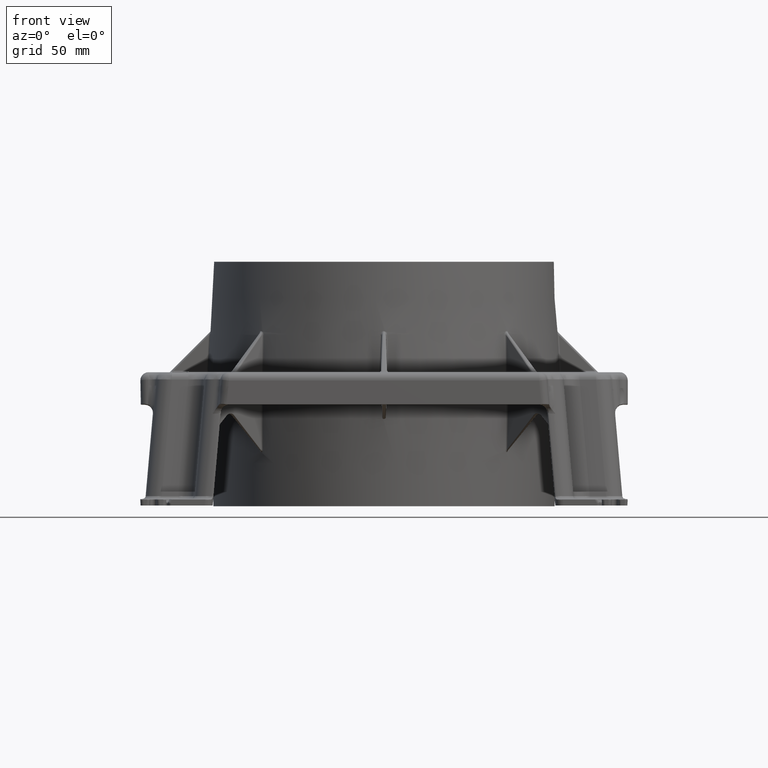
[diagram: clean part render]
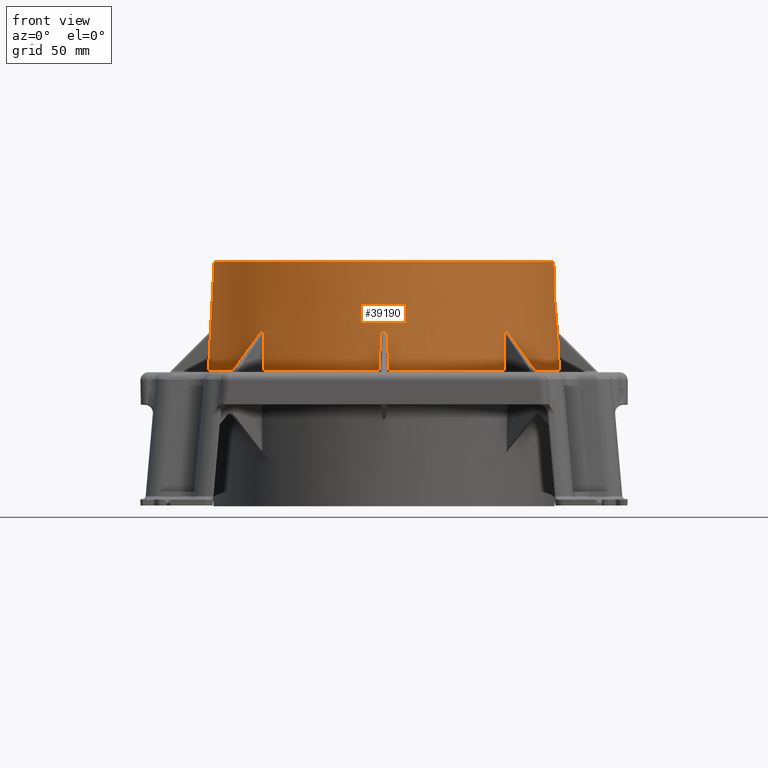
[diagram: same view with one face highlighted and labeled with its STEP entity id]
A machine part, front view. The second image highlights one B-rep face of the part: STEP entity #39190.
In plain terms, the highlighted conical surface has half-angle 3 deg.
Its self-contained STEP definition (entity closure, byte-faithful):
#38301=CARTESIAN_POINT('',(74.274895748569477,78.430593864823251,0.947664043757062));
#38302=VERTEX_POINT('',#38301);
#38342=CARTESIAN_POINT('',(74.016084416034587,77.117051930079484,22.496099015087296));
#38343=VERTEX_POINT('',#38342);
#38344=CARTESIAN_POINT('',(74.274895748569477,78.430593864823251,0.947664043757062));
#38345=CARTESIAN_POINT('',(74.189205882992468,77.993292485915347,8.130517009385679));
#38346=CARTESIAN_POINT('',(74.10294136183829,77.555450730793027,15.313329186647756));
#38347=CARTESIAN_POINT('',(74.016084416034587,77.117051930079484,22.49609901508731));
#38348=B_SPLINE_CURVE_WITH_KNOTS('',3,(#38344,#38345,#38346,#38347),.UNSPECIFIED.,.F.,.U.,(4,4),(-6.818513930174243,-4.659493144682952),.UNSPECIFIED.);
#38349=EDGE_CURVE('',#38302,#38343,#38348,.T.);
#38409=CARTESIAN_POINT('',(-78.43059386482328,-74.274895748569449,0.947664043757062));
#38410=VERTEX_POINT('',#38409);
#38429=CARTESIAN_POINT('',(-77.117051929851414,-74.016084415989368,22.496099018824541));
#38430=VERTEX_POINT('',#38429);
#38438=CARTESIAN_POINT('',(-77.117051929851414,-74.016084415989368,22.496099018824545));
#38439=CARTESIAN_POINT('',(-77.555450728275233,-74.102941361339589,15.313329227903335));
#38440=CARTESIAN_POINT('',(-77.993292483276306,-74.189205882475306,8.130517052733605));
#38441=CARTESIAN_POINT('',(-78.43059386482328,-74.274895748569449,0.947664043757068));
#38442=B_SPLINE_CURVE_WITH_KNOTS('',3,(#38438,#38439,#38440,#38441),.UNSPECIFIED.,.F.,.U.,(4,4),(-2.159020798520802,0.0),.UNSPECIFIED.);
#38443=EDGE_CURVE('',#38430,#38410,#38442,.T.);
#38633=CARTESIAN_POINT('',(104.505,1.279817E-014,68.0));
#38634=VERTEX_POINT('',#38633);
#38635=CARTESIAN_POINT('',(0.0,0.0,68.0));
#38636=DIRECTION('',(0.0,0.0,-1.0));
#38637=DIRECTION('',(-1.0,0.0,0.0));
#38638=AXIS2_PLACEMENT_3D('',#38635,#38636,#38637);
#38639=CIRCLE('',#38638,104.505);
#38640=EDGE_CURVE('',#38634,#38634,#38639,.T.);
#38648=CARTESIAN_POINT('',(0.0,0.0,68.0));
#38649=DIRECTION('',(0.0,0.0,-1.0));
#38650=DIRECTION('',(-1.0,0.0,0.0));
#38651=AXIS2_PLACEMENT_3D('',#38648,#38649,#38650);
#38652=CONICAL_SURFACE('',#38651,104.505,3.0);
#38653=CARTESIAN_POINT('',(77.117051929851399,74.016084415989383,22.496099018824538));
#38654=VERTEX_POINT('',#38653);
#38655=CARTESIAN_POINT('',(78.430593864823265,74.274895748569477,0.947664043757062));
#38656=VERTEX_POINT('',#38655);
#38657=CARTESIAN_POINT('',(77.117051929851399,74.016084415989383,22.496099018824538));
#38658=CARTESIAN_POINT('',(77.555450728275218,74.102941361339603,15.31332922790333));
#38659=CARTESIAN_POINT('',(77.993292483276292,74.189205882475321,8.130517052733607));
#38660=CARTESIAN_POINT('',(78.430593864823265,74.274895748569463,0.947664043757066));
#38661=B_SPLINE_CURVE_WITH_KNOTS('',3,(#38657,#38658,#38659,#38660),.UNSPECIFIED.,.F.,.U.,(4,4),(-2.159020798520803,0.0),.UNSPECIFIED.);
#38662=EDGE_CURVE('',#38654,#38656,#38661,.T.);
#38663=ORIENTED_EDGE('',*,*,#38662,.F.);
#38664=CARTESIAN_POINT('',(76.416645750527564,74.56272165141786,24.846429012287853));
#38665=VERTEX_POINT('',#38664);
#38666=CARTESIAN_POINT('',(76.417035681342099,74.562326178216026,24.846974602578321));
#38667=CARTESIAN_POINT('',(76.550867905007578,74.439180344784788,24.660432125468816));
#38668=CARTESIAN_POINT('',(76.917965334189205,74.114515714400554,23.943707528854151));
#38669=CARTESIAN_POINT('',(77.08106514053452,74.008954600387099,23.085710176763122));
#38670=CARTESIAN_POINT('',(77.117051929851385,74.016084415989397,22.496099018824506));
#38671=B_SPLINE_CURVE_WITH_KNOTS('',3,(#38666,#38667,#38668,#38669,#38670),.UNSPECIFIED.,.F.,.U.,(4,1,4),(-3.403823646695303,-3.325515395109602,-3.148288115093137),.UNSPECIFIED.);
#38672=EDGE_CURVE('',#38665,#38654,#38671,.T.);
#38673=ORIENTED_EDGE('',*,*,#38672,.F.);
#38674=CARTESIAN_POINT('',(75.475835514892083,75.475835514892353,25.373690563446747));
#38675=VERTEX_POINT('',#38674);
#38676=CARTESIAN_POINT('',(76.417035681342099,74.56232617821604,24.846974602578335));
#38677=CARTESIAN_POINT('',(76.348941794638222,74.624982825472244,24.941887486440329));
#38678=CARTESIAN_POINT('',(76.166171782622826,74.795742983612996,25.156256653267715));
#38679=CARTESIAN_POINT('',(75.841913695167364,75.108751826893013,25.372038341915868));
#38680=CARTESIAN_POINT('',(75.586922683604968,75.363339024560986,25.392597540779839));
#38681=CARTESIAN_POINT('',(75.475846776473531,75.475829244096374,25.373587653984316));
#38682=B_SPLINE_CURVE_WITH_KNOTS('',3,(#38676,#38677,#38678,#38679,#38680,#38681),.UNSPECIFIED.,.F.,.U.,(4,1,1,4),(3.403823646695305,3.443666915120579,3.502742675126068,3.550564716821005),.UNSPECIFIED.);
#38683=EDGE_CURVE('',#38665,#38675,#38682,.T.);
#38684=ORIENTED_EDGE('',*,*,#38683,.T.);
#38685=CARTESIAN_POINT('',(74.016084416034587,77.117051930079498,22.496099015087282));
#38686=CARTESIAN_POINT('',(74.008939541389665,77.080989134416697,23.08695547425199));
#38687=CARTESIAN_POINT('',(74.132863740961128,76.890422215876214,24.081171725038764));
#38688=CARTESIAN_POINT('',(74.629534137554344,76.338350601142281,25.041768496460545));
#38689=CARTESIAN_POINT('',(75.11102129085279,75.839596644111381,25.372977940807587));
#38690=CARTESIAN_POINT('',(75.364139646876154,75.586125265789363,25.392579716517567));
#38691=CARTESIAN_POINT('',(75.475877099694031,75.475797652386163,25.373611608394761));
#38692=B_SPLINE_CURVE_WITH_KNOTS('',3,(#38685,#38686,#38687,#38688,#38689,#38690,#38691),.UNSPECIFIED.,.F.,.U.,(4,1,1,1,4),(1.576707674633374,1.754309271415871,1.872710336009628,1.931910868306507,1.979794971860121),.UNSPECIFIED.);
#38693=EDGE_CURVE('',#38343,#38675,#38692,.T.);
#38694=ORIENTED_EDGE('',*,*,#38693,.F.);
#38695=ORIENTED_EDGE('',*,*,#38349,.F.);
#38696=CARTESIAN_POINT('',(2.938522318567234,107.97908723004191,0.947664043757062));
#38697=VERTEX_POINT('',#38696);
#38698=CARTESIAN_POINT('',(-4.440892E-015,0.0,0.947664043757062));
#38699=DIRECTION('',(0.0,0.0,-1.0));
#38700=DIRECTION('',(0.38268343236509,0.923879532511287,0.0));
#38701=AXIS2_PLACEMENT_3D('',#38698,#38699,#38700);
#38702=CIRCLE('',#38701,108.01906402320709);
#38703=EDGE_CURVE('',#38697,#38302,#38702,.T.);
#38704=ORIENTED_EDGE('',*,*,#38703,.F.);
#38705=CARTESIAN_POINT('',(2.192715157291031,106.8672655721351,22.496099018824509));
#38706=VERTEX_POINT('',#38705);
#38707=CARTESIAN_POINT('',(2.192715157291031,106.8672655721351,22.496099018824506));
#38708=CARTESIAN_POINT('',(2.441292785470256,107.2386774704149,15.313329227903306));
#38709=CARTESIAN_POINT('',(2.689895431647249,107.60927657233366,8.130517052733596));
#38710=CARTESIAN_POINT('',(2.938522318567225,107.9790872300419,0.947664043757066));
#38711=B_SPLINE_CURVE_WITH_KNOTS('',3,(#38707,#38708,#38709,#38710),.UNSPECIFIED.,.F.,.U.,(4,4),(-2.1590207985208,0.0),.UNSPECIFIED.);
#38712=EDGE_CURVE('',#38706,#38697,#38711,.T.);
#38713=ORIENTED_EDGE('',*,*,#38712,.F.);
#38714=CARTESIAN_POINT('',(1.310922302285713,106.7585345091708,24.846429012287764));
#38715=VERTEX_POINT('',#38714);
#38716=CARTESIAN_POINT('',(1.309209206646647,106.75859147704216,24.844781284623039));
#38717=CARTESIAN_POINT('',(1.353854498773188,106.76046447852426,24.79842959904515));
#38718=CARTESIAN_POINT('',(1.920323963881174,106.78657909920844,24.15869338239531));
#38719=CARTESIAN_POINT('',(2.165508535308272,106.82661483783365,23.282247410062165));
#38720=CARTESIAN_POINT('',(2.192715157291036,106.8672655721351,22.496099018824506));
#38721=B_SPLINE_CURVE_WITH_KNOTS('',3,(#38716,#38717,#38718,#38719,#38720),.UNSPECIFIED.,.F.,.U.,(4,1,4),(-3.403861218644583,-3.384591237363558,-3.148288143040373),.UNSPECIFIED.);
#38722=EDGE_CURVE('',#38715,#38706,#38721,.T.);
#38723=ORIENTED_EDGE('',*,*,#38722,.F.);
#38724=CARTESIAN_POINT('',(-4.898578E-015,106.73895021660151,25.373690563446726));
#38725=VERTEX_POINT('',#38724);
#38726=CARTESIAN_POINT('',(1.309209207649404,106.75859147708422,24.844781283581959));
#38727=CARTESIAN_POINT('',(1.216985909405209,106.75472243812601,24.940529460487802));
#38728=CARTESIAN_POINT('',(0.84676638561684,106.7419759912693,25.263709917774818));
#38729=CARTESIAN_POINT('',(0.351641209321653,106.73681165590128,25.413351847599603));
#38730=CARTESIAN_POINT('',(0.000051777545179,106.73896500129598,25.373237531801344));
#38731=B_SPLINE_CURVE_WITH_KNOTS('',3,(#38726,#38727,#38728,#38729,#38730),.UNSPECIFIED.,.F.,.U.,(4,1,4),(3.403861218500311,3.443667010944354,3.550532143557717),.UNSPECIFIED.);
#38732=EDGE_CURVE('',#38715,#38725,#38731,.T.);
#38733=ORIENTED_EDGE('',*,*,#38732,.T.);
#38734=CARTESIAN_POINT('',(-2.192715157420352,106.86726557232834,22.496099015087296));
#38735=VERTEX_POINT('',#38734);
#38736=CARTESIAN_POINT('',(-2.192715157420341,106.86726557232834,22.496099015087282));
#38737=CARTESIAN_POINT('',(-2.172267099370756,106.83671313565448,23.086955474252004));
#38738=CARTESIAN_POINT('',(-1.949883583454613,106.78958919776007,24.081177984524246));
#38739=CARTESIAN_POINT('',(-1.208314424596577,106.75041492733952,25.041769925794259));
#38740=CARTESIAN_POINT('',(-0.515179377340283,106.73820545160319,25.372979642793688));
#38741=CARTESIAN_POINT('',(-0.156967319231904,106.73795592080111,25.392580027494553));
#38742=CARTESIAN_POINT('',(0.000056236855557,106.73895284298295,25.373611693192739));
#38743=B_SPLINE_CURVE_WITH_KNOTS('',3,(#38736,#38737,#38738,#38739,#38740,#38741,#38742),.UNSPECIFIED.,.F.,.U.,(4,1,1,1,4),(1.576707674633371,1.754309271415869,1.872710336009627,1.931910868306506,1.979794971860141),.UNSPECIFIED.);
#38744=EDGE_CURVE('',#38735,#38725,#38743,.T.);
#38745=ORIENTED_EDGE('',*,*,#38744,.F.);
#38746=CARTESIAN_POINT('',(-2.938522318567211,107.9790872300419,0.947664043757064));
#38747=VERTEX_POINT('',#38746);
#38748=CARTESIAN_POINT('',(-2.938522318567211,107.9790872300419,0.947664043757064));
#38749=CARTESIAN_POINT('',(-2.689895433019203,107.60927657437433,8.130517013097327));
#38750=CARTESIAN_POINT('',(-2.441292786779512,107.23867747237085,15.31332919007156));
#38751=CARTESIAN_POINT('',(-2.192715157420352,106.86726557232834,22.496099015087303));
#38752=B_SPLINE_CURVE_WITH_KNOTS('',3,(#38748,#38749,#38750,#38751),.UNSPECIFIED.,.F.,.U.,(4,4),(-6.818513931736701,-4.659493145129765),.UNSPECIFIED.);
#38753=EDGE_CURVE('',#38747,#38735,#38752,.T.);
#38754=ORIENTED_EDGE('',*,*,#38753,.F.);
#38755=CARTESIAN_POINT('',(-74.274895748569435,78.430593864823308,0.947664043757062));
#38756=VERTEX_POINT('',#38755);
#38757=CARTESIAN_POINT('',(4.440892E-015,8.881784E-015,0.947664043757062));
#38758=DIRECTION('',(0.0,0.0,-1.0));
#38759=DIRECTION('',(-0.38268343236509,0.923879532511287,0.0));
#38760=AXIS2_PLACEMENT_3D('',#38757,#38758,#38759);
#38761=CIRCLE('',#38760,108.01906402320709);
#38762=EDGE_CURVE('',#38756,#38747,#38761,.T.);
#38763=ORIENTED_EDGE('',*,*,#38762,.F.);
#38764=CARTESIAN_POINT('',(-74.016084415989368,77.117051929851414,22.496099018824527));
#38765=VERTEX_POINT('',#38764);
#38766=CARTESIAN_POINT('',(-74.016084415989368,77.117051929851414,22.496099018824523));
#38767=CARTESIAN_POINT('',(-74.102941361339589,77.555450728275233,15.313329227903317));
#38768=CARTESIAN_POINT('',(-74.189205882475306,77.993292483276306,8.130517052733598));
#38769=CARTESIAN_POINT('',(-74.274895748569449,78.43059386482328,0.947664043757062));
#38770=B_SPLINE_CURVE_WITH_KNOTS('',3,(#38766,#38767,#38768,#38769),.UNSPECIFIED.,.F.,.U.,(4,4),(-2.159020798520802,0.0),.UNSPECIFIED.);
#38771=EDGE_CURVE('',#38765,#38756,#38770,.T.);
#38772=ORIENTED_EDGE('',*,*,#38771,.F.);
#38773=CARTESIAN_POINT('',(-74.562721651417945,76.416645750527465,24.84642901228797));
#38774=VERTEX_POINT('',#38773);
#38775=CARTESIAN_POINT('',(-74.5627478919982,76.416672847179811,24.846431127233867));
#38776=CARTESIAN_POINT('',(-74.500308280877363,76.484541288595736,24.751603200909685));
#38777=CARTESIAN_POINT('',(-74.443276598375931,76.547674084949264,24.64730984672364));
#38778=CARTESIAN_POINT('',(-74.392349055209067,76.605166144146168,24.537913002155676));
#38779=CARTESIAN_POINT('',(-74.31924055678887,76.687698264441025,24.380869513682946));
#38780=CARTESIAN_POINT('',(-74.258790312507983,76.758531814573672,24.213372658145587));
#38781=CARTESIAN_POINT('',(-74.208885547810752,76.819413617413929,24.040283003664413));
#38782=CARTESIAN_POINT('',(-74.070436798936825,76.988315514528594,23.560087450167153));
#38783=CARTESIAN_POINT('',(-74.00970764320958,77.084866023321879,23.02343613276037));
#38784=CARTESIAN_POINT('',(-74.016084415989383,77.117051929851414,22.496099018824523));
#38785=B_SPLINE_CURVE_WITH_KNOTS('',3,(#38775,#38776,#38777,#38778,#38779,#38780,#38781,#38782,#38783,#38784),.UNSPECIFIED.,.F.,.U.,(4,3,3,4),(-3.403733108922831,-3.363932377345856,-3.306796856158752,-3.148288115107564),.UNSPECIFIED.);
#38786=EDGE_CURVE('',#38774,#38765,#38785,.T.);
#38787=ORIENTED_EDGE('',*,*,#38786,.F.);
#38788=CARTESIAN_POINT('',(-76.117182702961685,74.862184698983413,24.929624706972312));
#38789=VERTEX_POINT('',#38788);
#38790=CARTESIAN_POINT('',(-74.562668021172968,76.416742149765199,24.846534391554375));
#38791=CARTESIAN_POINT('',(-74.729863393459141,76.235080879099087,25.099551277189693));
#38792=CARTESIAN_POINT('',(-75.078450642873094,75.869068303708673,25.427308808991704));
#38793=CARTESIAN_POINT('',(-75.694904667109711,75.257557314353278,25.370858465751994));
#38794=CARTESIAN_POINT('',(-75.990004042433441,74.979186184277694,25.094319322476991));
#38795=CARTESIAN_POINT('',(-76.117182702954409,74.862184698992081,24.929624706960446));
#38796=B_SPLINE_CURVE_WITH_KNOTS('',3,(#38790,#38791,#38792,#38793,#38794,#38795),.UNSPECIFIED.,.F.,.U.,(4,1,1,4),(3.40337832175342,3.507851241272282,3.579763866505227,3.65167649173817),.UNSPECIFIED.);
#38797=EDGE_CURVE('',#38774,#38789,#38796,.T.);
#38798=ORIENTED_EDGE('',*,*,#38797,.T.);
#38799=CARTESIAN_POINT('',(-76.416645750527664,74.56272165141776,24.846429012287672));
#38800=VERTEX_POINT('',#38799);
#38801=CARTESIAN_POINT('',(-76.117182702951169,74.862184698993914,24.929624706974671));
#38802=CARTESIAN_POINT('',(-76.266911169333241,74.712456232612126,24.896040581251114));
#38803=CARTESIAN_POINT('',(-76.416645750527664,74.56272165141776,24.846429012287672));
#38811=(BOUNDED_CURVE()B_SPLINE_CURVE(2,(#38801,#38802,#38803),.UNSPECIFIED.,.F.,.U.)B_SPLINE_CURVE_WITH_KNOTS((3,3),(0.783076660371038,0.831177198817424),.UNSPECIFIED.)CURVE()GEOMETRIC_REPRESENTATION_ITEM()RATIONAL_B_SPLINE_CURVE((1.000774758828037,1.000766509426054,1.000754323388468))REPRESENTATION_ITEM(''));
#38812=EDGE_CURVE('',#38789,#38800,#38811,.T.);
#38813=ORIENTED_EDGE('',*,*,#38812,.T.);
#38814=CARTESIAN_POINT('',(-77.117051929851385,74.016084415989411,22.496099018824538));
#38815=VERTEX_POINT('',#38814);
#38816=CARTESIAN_POINT('',(-77.117051929851385,74.016084415989496,22.496099018824331));
#38817=CARTESIAN_POINT('',(-77.083374178130896,74.009412074159897,23.047878673681993));
#38818=CARTESIAN_POINT('',(-76.922621829897821,74.112319205689602,23.904338844560222));
#38819=CARTESIAN_POINT('',(-76.569678208859301,74.422029914996898,24.631111798338008));
#38820=CARTESIAN_POINT('',(-76.415416343567827,74.564057053100768,24.844652713186505));
#38821=B_SPLINE_CURVE_WITH_KNOTS('',3,(#38816,#38817,#38818,#38819,#38820),.UNSPECIFIED.,.F.,.U.,(4,1,4),(1.576623160796051,1.742478921973889,1.83259771104691),.UNSPECIFIED.);
#38822=EDGE_CURVE('',#38815,#38800,#38821,.T.);
#38823=ORIENTED_EDGE('',*,*,#38822,.F.);
#38824=CARTESIAN_POINT('',(-78.430593864823251,74.274895748569477,0.947664043757066));
#38825=VERTEX_POINT('',#38824);
#38826=CARTESIAN_POINT('',(-78.430593864823251,74.274895748569477,0.947664043757066));
#38827=CARTESIAN_POINT('',(-77.993292483276278,74.189205882475335,8.130517052733609));
#38828=CARTESIAN_POINT('',(-77.555450728275204,74.102941361339617,15.31332922790333));
#38829=CARTESIAN_POINT('',(-77.117051929851385,74.016084415989397,22.496099018824541));
#38830=B_SPLINE_CURVE_WITH_KNOTS('',3,(#38826,#38827,#38828,#38829),.UNSPECIFIED.,.F.,.U.,(4,4),(-2.159020798520803,0.0),.UNSPECIFIED.);
#38831=EDGE_CURVE('',#38825,#38815,#38830,.T.);
#38832=ORIENTED_EDGE('',*,*,#38831,.F.);
#38833=CARTESIAN_POINT('',(-107.9790872300419,2.938522318567221,0.947664043757062));
#38834=VERTEX_POINT('',#38833);
#38835=CARTESIAN_POINT('',(0.0,-4.440892E-015,0.947664043757062));
#38836=DIRECTION('',(0.0,0.0,-1.0));
#38837=DIRECTION('',(-0.923879532511287,0.38268343236509,0.0));
#38838=AXIS2_PLACEMENT_3D('',#38835,#38836,#38837);
#38839=CIRCLE('',#38838,108.01906402320709);
#38840=EDGE_CURVE('',#38834,#38825,#38839,.T.);
#38841=ORIENTED_EDGE('',*,*,#38840,.F.);
#38842=CARTESIAN_POINT('',(-106.8672655721351,2.192715157291035,22.496099018824559));
#38843=VERTEX_POINT('',#38842);
#38844=CARTESIAN_POINT('',(-106.8672655721351,2.19271515729103,22.496099018824573));
#38845=CARTESIAN_POINT('',(-107.2386774704149,2.441292785470257,15.313329227903356));
#38846=CARTESIAN_POINT('',(-107.60927657233366,2.68989543164725,8.130517052733616));
#38847=CARTESIAN_POINT('',(-107.9790872300419,2.938522318567227,0.947664043757064));
#38848=B_SPLINE_CURVE_WITH_KNOTS('',3,(#38844,#38845,#38846,#38847),.UNSPECIFIED.,.F.,.U.,(4,4),(-2.159020798520806,0.0),.UNSPECIFIED.);
#38849=EDGE_CURVE('',#38843,#38834,#38848,.T.);
#38850=ORIENTED_EDGE('',*,*,#38849,.F.);
#38851=CARTESIAN_POINT('',(-106.7585345091708,1.31092230228594,24.84642901228753));
#38852=VERTEX_POINT('',#38851);
#38853=CARTESIAN_POINT('',(-106.75857187880379,1.310922901323418,24.846431107119361));
#38854=CARTESIAN_POINT('',(-106.7624106115553,1.403064485657688,24.751603305428347));
#38855=CARTESIAN_POINT('',(-106.76672470634321,1.488033400383788,24.647310088692727));
#38856=CARTESIAN_POINT('',(-106.77136648198386,1.56469754720316,24.537913393435442));
#38857=CARTESIAN_POINT('',(-106.77803017692717,1.674755966015693,24.380864397224723));
#38858=CARTESIAN_POINT('',(-106.78537253980244,1.767590480919183,24.213361297172234));
#38859=CARTESIAN_POINT('',(-106.79313483434171,1.845930254170392,24.040264919311852));
#38860=CARTESIAN_POINT('',(-106.81466840678497,2.063254548418115,23.560073994649407));
#38861=CARTESIAN_POINT('',(-106.839997974664,2.174465567719713,23.023429662493808));
#38862=CARTESIAN_POINT('',(-106.8672655721351,2.192715157291034,22.496099018824573));
#38863=B_SPLINE_CURVE_WITH_KNOTS('',3,(#38853,#38854,#38855,#38856,#38857,#38858,#38859,#38860,#38861,#38862),.UNSPECIFIED.,.F.,.U.,(4,3,3,4),(-1.829589180624062,-1.789788457935636,-1.732650867700596,-1.574144071503634),.UNSPECIFIED.);
#38864=EDGE_CURVE('',#38852,#38843,#38863,.T.);
#38865=ORIENTED_EDGE('',*,*,#38864,.F.);
#38866=CARTESIAN_POINT('',(-106.7585345091706,-0.887417598985425,24.92962470697428));
#38867=VERTEX_POINT('',#38866);
#38868=CARTESIAN_POINT('',(-106.75856484078452,1.311022292323351,24.846528408346892));
#38869=CARTESIAN_POINT('',(-106.74833591024851,1.064344771277806,25.099545486688619));
#38870=CARTESIAN_POINT('',(-106.73601435750051,0.55905039395357,25.427304008364867));
#38871=CARTESIAN_POINT('',(-106.73950956328494,-0.309254828918007,25.370855131146897));
#38872=CARTESIAN_POINT('',(-106.75133819792194,-0.714757082717718,25.094318444286031));
#38873=CARTESIAN_POINT('',(-106.75853450917143,-0.887417598974703,24.929624706962979));
#38874=B_SPLINE_CURVE_WITH_KNOTS('',3,(#38868,#38869,#38870,#38871,#38872,#38873),.UNSPECIFIED.,.F.,.U.,(4,1,1,4),(1.829234273121475,1.933707325440842,2.005619976228284,2.077532627015727),.UNSPECIFIED.);
#38875=EDGE_CURVE('',#38852,#38867,#38874,.T.);
#38876=ORIENTED_EDGE('',*,*,#38875,.T.);
#38877=CARTESIAN_POINT('',(-106.75853450917077,-1.31092230228572,24.846429012287739));
#38878=VERTEX_POINT('',#38877);
#38879=CARTESIAN_POINT('',(-106.75853450917066,-0.88741759897092,24.929624706976586));
#38880=CARTESIAN_POINT('',(-106.75853450917081,-1.099165626802931,24.896040581251626));
#38881=CARTESIAN_POINT('',(-106.75853450917077,-1.31092230228572,24.846429012287739));
#38889=(BOUNDED_CURVE()B_SPLINE_CURVE(2,(#38879,#38880,#38881),.UNSPECIFIED.,.F.,.U.)B_SPLINE_CURVE_WITH_KNOTS((3,3),(0.78307666037064,0.831177198817345),.UNSPECIFIED.)CURVE()GEOMETRIC_REPRESENTATION_ITEM()RATIONAL_B_SPLINE_CURVE((1.000774758828003,1.00076650942602,1.000754323388435))REPRESENTATION_ITEM(''));
#38890=EDGE_CURVE('',#38867,#38878,#38889,.T.);
#38891=ORIENTED_EDGE('',*,*,#38890,.T.);
#38892=CARTESIAN_POINT('',(-106.8672655721351,-2.192715157291018,22.496099018824502));
#38893=VERTEX_POINT('',#38892);
#38894=CARTESIAN_POINT('',(-106.86726557213511,-2.192715157291023,22.496099018824491));
#38895=CARTESIAN_POINT('',(-106.83873374736442,-2.173619448828321,23.047878673682106));
#38896=CARTESIAN_POINT('',(-106.79783072219109,-1.987187162534905,23.904345306817234));
#38897=CARTESIAN_POINT('',(-106.76726048758425,-1.518620827481832,24.631117279281717));
#38898=CARTESIAN_POINT('',(-106.75860928257642,-1.309113017234341,24.844656923927978));
#38899=B_SPLINE_CURVE_WITH_KNOTS('',3,(#38894,#38895,#38896,#38897,#38898),.UNSPECIFIED.,.F.,.U.,(4,1,4),(3.153246321592103,3.319102082769911,3.409220700432033),.UNSPECIFIED.);
#38900=EDGE_CURVE('',#38893,#38878,#38899,.T.);
#38901=ORIENTED_EDGE('',*,*,#38900,.F.);
#38902=CARTESIAN_POINT('',(-107.9790872300419,-2.938522318567212,0.947664043757066));
#38903=VERTEX_POINT('',#38902);
#38904=CARTESIAN_POINT('',(-107.9790872300419,-2.938522318567212,0.947664043757066));
#38905=CARTESIAN_POINT('',(-107.60927657233366,-2.689895431647237,8.130517052733593));
#38906=CARTESIAN_POINT('',(-107.2386774704149,-2.441292785470243,15.313329227903317));
#38907=CARTESIAN_POINT('',(-106.8672655721351,-2.192715157291018,22.496099018824509));
#38908=B_SPLINE_CURVE_WITH_KNOTS('',3,(#38904,#38905,#38906,#38907),.UNSPECIFIED.,.F.,.U.,(4,4),(-2.159020798520799,0.0),.UNSPECIFIED.);
#38909=EDGE_CURVE('',#38903,#38893,#38908,.T.);
#38910=ORIENTED_EDGE('',*,*,#38909,.F.);
#38911=CARTESIAN_POINT('',(0.0,8.881784E-015,0.947664043757062));
#38912=DIRECTION('',(0.0,0.0,-1.0));
#38913=DIRECTION('',(-0.923879532511287,-0.38268343236509,0.0));
#38914=AXIS2_PLACEMENT_3D('',#38911,#38912,#38913);
#38915=CIRCLE('',#38914,108.01906402320709);
#38916=EDGE_CURVE('',#38410,#38903,#38915,.T.);
#38917=ORIENTED_EDGE('',*,*,#38916,.F.);
#38918=ORIENTED_EDGE('',*,*,#38443,.F.);
#38919=CARTESIAN_POINT('',(-76.41664575052755,-74.56272165141786,24.846429012287853));
#38920=VERTEX_POINT('',#38919);
#38921=CARTESIAN_POINT('',(-76.416672847180976,-74.562747891999194,24.846431127233842));
#38922=CARTESIAN_POINT('',(-76.484541288661177,-74.500308280819866,24.751603200820355));
#38923=CARTESIAN_POINT('',(-76.547674085083841,-74.443276598258194,24.647309846503276));
#38924=CARTESIAN_POINT('',(-76.60516614431944,-74.392349055060862,24.537913001824109));
#38925=CARTESIAN_POINT('',(-76.687698261652287,-74.319240559269971,24.38086951893364));
#38926=CARTESIAN_POINT('',(-76.758531809622042,-74.258790316747309,24.213372669784377));
#38927=CARTESIAN_POINT('',(-76.819413610922297,-74.208885553139481,24.04028302213305));
#38928=CARTESIAN_POINT('',(-76.988315512091617,-74.07043680046219,23.560087463909404));
#38929=CARTESIAN_POINT('',(-77.084866022917936,-74.009707643129559,23.023436139378617));
#38930=CARTESIAN_POINT('',(-77.117051929851414,-74.016084415989368,22.496099018824552));
#38931=B_SPLINE_CURVE_WITH_KNOTS('',3,(#38921,#38922,#38923,#38924,#38925,#38926,#38927,#38928,#38929,#38930),.UNSPECIFIED.,.F.,.U.,(4,3,3,4),(-1.829589051236144,-1.789788319666662,-1.732652800579334,-1.574144057538819),.UNSPECIFIED.);
#38932=EDGE_CURVE('',#38920,#38430,#38931,.T.);
#38933=ORIENTED_EDGE('',*,*,#38932,.F.);
#38934=CARTESIAN_POINT('',(-74.862184698983455,-76.117182702961657,24.929624706972362));
#38935=VERTEX_POINT('',#38934);
#38936=CARTESIAN_POINT('',(-76.416742149809821,-74.562668021123926,24.846534391619027));
#38937=CARTESIAN_POINT('',(-76.235080879058245,-74.729863393493204,25.099551277298751));
#38938=CARTESIAN_POINT('',(-75.869068303499617,-75.078450643066773,25.427308809254271));
#38939=CARTESIAN_POINT('',(-75.257557314984709,-75.69490466647477,25.370858465787258));
#38940=CARTESIAN_POINT('',(-74.97918618491569,-75.990004041739937,25.094319323375057));
#38941=CARTESIAN_POINT('',(-74.86218469899211,-76.117182702954366,24.929624706960492));
#38942=B_SPLINE_CURVE_WITH_KNOTS('',3,(#38936,#38937,#38938,#38939,#38940,#38941),.UNSPECIFIED.,.F.,.U.,(4,1,1,4),(1.829234264115112,1.933707183572868,2.005619808779678,2.077532433986488),.UNSPECIFIED.);
#38943=EDGE_CURVE('',#38920,#38935,#38942,.T.);
#38944=ORIENTED_EDGE('',*,*,#38943,.T.);
#38945=CARTESIAN_POINT('',(-74.562721651417803,-76.416645750527607,24.846429012287722));
#38946=VERTEX_POINT('',#38945);
#38947=CARTESIAN_POINT('',(-74.862184698993957,-76.117182702951169,24.929624706974714));
#38948=CARTESIAN_POINT('',(-74.712456232612183,-76.266911169333241,24.896040581251167));
#38949=CARTESIAN_POINT('',(-74.562721651417803,-76.416645750527607,24.846429012287722));
#38957=(BOUNDED_CURVE()B_SPLINE_CURVE(2,(#38947,#38948,#38949),.UNSPECIFIED.,.F.,.U.)B_SPLINE_CURVE_WITH_KNOTS((3,3),(0.783076660370968,0.831177198817353),.UNSPECIFIED.)CURVE()GEOMETRIC_REPRESENTATION_ITEM()RATIONAL_B_SPLINE_CURVE((1.000774758828134,1.00076650942615,1.000754323388563))REPRESENTATION_ITEM(''));
#38958=EDGE_CURVE('',#38935,#38946,#38957,.T.);
#38959=ORIENTED_EDGE('',*,*,#38958,.T.);
#38960=CARTESIAN_POINT('',(-74.016084415989411,-77.117051929851385,22.496099018824545));
#38961=VERTEX_POINT('',#38960);
#38962=CARTESIAN_POINT('',(-74.016084415989454,-77.117051929851371,22.496099018824491));
#38963=CARTESIAN_POINT('',(-74.007187960216783,-77.0721482608907,23.231805225301304));
#38964=CARTESIAN_POINT('',(-74.143842772655532,-76.878614506733228,24.103876477902737));
#38965=CARTESIAN_POINT('',(-74.508903249132203,-76.475276226245285,24.762508864002868));
#38966=CARTESIAN_POINT('',(-74.563357279563135,-76.416072085414712,24.84560374043328));
#38967=B_SPLINE_CURVE_WITH_KNOTS('',3,(#38962,#38963,#38964,#38965,#38966),.UNSPECIFIED.,.F.,.U.,(4,1,4),(1.576623160796052,1.797764175699808,1.832496713526456),.UNSPECIFIED.);
#38968=EDGE_CURVE('',#38961,#38946,#38967,.T.);
#38969=ORIENTED_EDGE('',*,*,#38968,.F.);
#38970=CARTESIAN_POINT('',(-74.274895748569506,-78.430593864823237,0.947664043757068));
#38971=VERTEX_POINT('',#38970);
#38972=CARTESIAN_POINT('',(-74.274895748569506,-78.430593864823237,0.94766404375707));
#38973=CARTESIAN_POINT('',(-74.189205882475363,-77.993292483276264,8.130517052733614));
#38974=CARTESIAN_POINT('',(-74.102941361339646,-77.55545072827519,15.313329227903342));
#38975=CARTESIAN_POINT('',(-74.016084415989411,-77.117051929851371,22.496099018824552));
#38976=B_SPLINE_CURVE_WITH_KNOTS('',3,(#38972,#38973,#38974,#38975),.UNSPECIFIED.,.F.,.U.,(4,4),(-2.159020798520804,0.0),.UNSPECIFIED.);
#38977=EDGE_CURVE('',#38971,#38961,#38976,.T.);
#38978=ORIENTED_EDGE('',*,*,#38977,.F.);
#38979=CARTESIAN_POINT('',(-2.938522318567207,-107.9790872300419,0.947664043757062));
#38980=VERTEX_POINT('',#38979);
#38981=CARTESIAN_POINT('',(4.440892E-015,0.0,0.947664043757062));
#38982=DIRECTION('',(0.0,0.0,-1.0));
#38983=DIRECTION('',(-0.38268343236509,-0.923879532511287,0.0));
#38984=AXIS2_PLACEMENT_3D('',#38981,#38982,#38983);
#38985=CIRCLE('',#38984,108.01906402320709);
#38986=EDGE_CURVE('',#38980,#38971,#38985,.T.);
#38987=ORIENTED_EDGE('',*,*,#38986,.F.);
#38988=CARTESIAN_POINT('',(-2.192715157291024,-106.8672655721351,22.496099018824594));
#38989=VERTEX_POINT('',#38988);
#38990=CARTESIAN_POINT('',(-2.19271515729102,-106.8672655721351,22.496099018824598));
#38991=CARTESIAN_POINT('',(-2.441292785470246,-107.2386774704149,15.313329227903374));
#38992=CARTESIAN_POINT('',(-2.689895431647241,-107.60927657233366,8.130517052733623));
#38993=CARTESIAN_POINT('',(-2.938522318567218,-107.9790872300419,0.947664043757064));
#38994=B_SPLINE_CURVE_WITH_KNOTS('',3,(#38990,#38991,#38992,#38993),.UNSPECIFIED.,.F.,.U.,(4,4),(-2.159020798520809,0.0),.UNSPECIFIED.);
#38995=EDGE_CURVE('',#38989,#38980,#38994,.T.);
#38996=ORIENTED_EDGE('',*,*,#38995,.F.);
#38997=CARTESIAN_POINT('',(-1.310922302285868,-106.7585345091708,24.846429012287629));
#38998=VERTEX_POINT('',#38997);
#38999=CARTESIAN_POINT('',(-1.310923058085634,-106.75857863454495,24.846431541881763));
#39000=CARTESIAN_POINT('',(-1.535343195596719,-106.76797495532169,24.615472411468616));
#39001=CARTESIAN_POINT('',(-1.713064100430966,-106.77983503778788,24.333902035758861));
#39002=CARTESIAN_POINT('',(-1.845505954040538,-106.79290838474611,24.040060361521416));
#39003=CARTESIAN_POINT('',(-1.865872565833124,-106.79491877477818,23.994874046587171));
#39004=CARTESIAN_POINT('',(-1.885332982333021,-106.79696834883829,23.949142546938212));
#39005=CARTESIAN_POINT('',(-1.903895260043871,-106.79905326403237,23.902987070582434));
#39006=CARTESIAN_POINT('',(-2.082707082114316,-106.81913740944397,23.458367883526417));
#39007=CARTESIAN_POINT('',(-2.176181871674588,-106.84256238769902,22.973836236530701));
#39008=CARTESIAN_POINT('',(-2.192715157291024,-106.8672655721351,22.496099018824598));
#39009=B_SPLINE_CURVE_WITH_KNOTS('',3,(#38999,#39000,#39001,#39002,#39003,#39004,#39005,#39006,#39007,#39008),.UNSPECIFIED.,.F.,.U.,(4,3,3,4),(-1.829589180618657,-1.732650867781874,-1.717743911018832,-1.574144071503073),.UNSPECIFIED.);
#39010=EDGE_CURVE('',#38998,#38989,#39009,.T.);
#39011=ORIENTED_EDGE('',*,*,#39010,.F.);
#39012=CARTESIAN_POINT('',(0.887417598985109,-106.75853450917062,24.929624706974582));
#39013=VERTEX_POINT('',#39012);
#39014=CARTESIAN_POINT('',(-1.310923058085632,-106.75857863454493,24.846431541881742));
#39015=CARTESIAN_POINT('',(-1.236317593146207,-106.75548659777758,24.922658819205111));
#39016=CARTESIAN_POINT('',(-0.977156401899544,-106.74635800529457,25.151762204267438));
#39017=CARTESIAN_POINT('',(-0.436764098626838,-106.73638133158735,25.422727255205807));
#39018=CARTESIAN_POINT('',(0.304179001235645,-106.73970493607561,25.365709652951072));
#39019=CARTESIAN_POINT('',(0.714197768870293,-106.75138252357362,25.09355709072263));
#39020=CARTESIAN_POINT('',(0.886733519236517,-106.75857854023717,24.928902750922084));
#39021=B_SPLINE_CURVE_WITH_KNOTS('',3,(#39014,#39015,#39016,#39017,#39018,#39019,#39020),.UNSPECIFIED.,.F.,.U.,(4,1,1,1,4),(1.829642161605573,1.861794674648512,1.933707325434872,2.005619976221233,2.077532627007593),.UNSPECIFIED.);
#39022=EDGE_CURVE('',#38998,#39013,#39021,.T.);
#39023=ORIENTED_EDGE('',*,*,#39022,.T.);
#39024=CARTESIAN_POINT('',(1.310922302285384,-106.75853450917077,24.846429012288105));
#39025=VERTEX_POINT('',#39024);
#39026=CARTESIAN_POINT('',(0.887417598970604,-106.7585345091706,24.929624706976877));
#39027=CARTESIAN_POINT('',(1.099165626802609,-106.75853450917073,24.896040581251974));
#39028=CARTESIAN_POINT('',(1.310922302285384,-106.75853450917077,24.846429012288105));
#39036=(BOUNDED_CURVE()B_SPLINE_CURVE(2,(#39026,#39027,#39028),.UNSPECIFIED.,.F.,.U.)B_SPLINE_CURVE_WITH_KNOTS((3,3),(0.783076660370435,0.831177198817138),.UNSPECIFIED.)CURVE()GEOMETRIC_REPRESENTATION_ITEM()RATIONAL_B_SPLINE_CURVE((1.000774758828062,1.000766509426079,1.000754323388492))REPRESENTATION_ITEM(''));
#39037=EDGE_CURVE('',#39013,#39025,#39036,.T.);
#39038=ORIENTED_EDGE('',*,*,#39037,.T.);
#39039=CARTESIAN_POINT('',(2.192715157291024,-106.8672655721351,22.496099018824527));
#39040=VERTEX_POINT('',#39039);
#39041=CARTESIAN_POINT('',(2.192715157291026,-106.8672655721351,22.496099018824527));
#39042=CARTESIAN_POINT('',(2.167254212674093,-106.82922313910751,23.231805225301333));
#39043=CARTESIAN_POINT('',(1.933777591840431,-106.78900353393131,24.103877774898383));
#39044=CARTESIAN_POINT('',(1.3904379868084,-106.76193703270174,24.76251077236234));
#39045=CARTESIAN_POINT('',(1.310069326143724,-106.75857819546927,24.845605788266624));
#39046=B_SPLINE_CURVE_WITH_KNOTS('',3,(#39041,#39042,#39043,#39044,#39045),.UNSPECIFIED.,.F.,.U.,(4,1,4),(3.153246321592131,3.374387336495875,3.409119940725695),.UNSPECIFIED.);
#39047=EDGE_CURVE('',#39040,#39025,#39046,.T.);
#39048=ORIENTED_EDGE('',*,*,#39047,.F.);
#39049=CARTESIAN_POINT('',(2.938522318567217,-107.9790872300419,0.947664043757059));
#39050=VERTEX_POINT('',#39049);
#39051=CARTESIAN_POINT('',(2.938522318567217,-107.9790872300419,0.947664043757062));
#39052=CARTESIAN_POINT('',(2.689895431647241,-107.60927657233366,8.130517052733602));
#39053=CARTESIAN_POINT('',(2.441292785470247,-107.2386774704149,15.31332922790333));
#39054=CARTESIAN_POINT('',(2.192715157291021,-106.8672655721351,22.496099018824538));
#39055=B_SPLINE_CURVE_WITH_KNOTS('',3,(#39051,#39052,#39053,#39054),.UNSPECIFIED.,.F.,.U.,(4,4),(-2.159020798520803,0.0),.UNSPECIFIED.);
#39056=EDGE_CURVE('',#39050,#39040,#39055,.T.);
#39057=ORIENTED_EDGE('',*,*,#39056,.F.);
#39058=CARTESIAN_POINT('',(74.274895748569477,-78.430593864823251,0.947664043757062));
#39059=VERTEX_POINT('',#39058);
#39060=CARTESIAN_POINT('',(-4.440892E-015,0.0,0.947664043757062));
#39061=DIRECTION('',(0.0,0.0,-1.0));
#39062=DIRECTION('',(0.38268343236509,-0.923879532511287,0.0));
#39063=AXIS2_PLACEMENT_3D('',#39060,#39061,#39062);
#39064=CIRCLE('',#39063,108.01906402320709);
#39065=EDGE_CURVE('',#39059,#39050,#39064,.T.);
#39066=ORIENTED_EDGE('',*,*,#39065,.F.);
#39067=CARTESIAN_POINT('',(74.016084415989397,-77.117051929851385,22.496099018824477));
#39068=VERTEX_POINT('',#39067);
#39069=CARTESIAN_POINT('',(74.016084415989397,-77.117051929851399,22.496099018824481));
#39070=CARTESIAN_POINT('',(74.102941361339617,-77.555450728275218,15.313329227903294));
#39071=CARTESIAN_POINT('',(74.189205882475335,-77.993292483276278,8.130517052733593));
#39072=CARTESIAN_POINT('',(74.274895748569477,-78.430593864823251,0.94766404375707));
#39073=B_SPLINE_CURVE_WITH_KNOTS('',3,(#39069,#39070,#39071,#39072),.UNSPECIFIED.,.F.,.U.,(4,4),(-2.159020798520797,0.0),.UNSPECIFIED.);
#39074=EDGE_CURVE('',#39068,#39059,#39073,.T.);
#39075=ORIENTED_EDGE('',*,*,#39074,.F.);
#39076=CARTESIAN_POINT('',(74.56272165141786,-76.416645750527564,24.846429012287835));
#39077=VERTEX_POINT('',#39076);
#39078=CARTESIAN_POINT('',(74.56232617821766,-76.417035681341218,24.846974602576573));
#39079=CARTESIAN_POINT('',(74.439180344857391,-76.550867904932829,24.660432125522668));
#39080=CARTESIAN_POINT('',(74.114515714267682,-76.917965334325842,23.943707528805));
#39081=CARTESIAN_POINT('',(74.008954600388748,-77.081065140542947,23.085710176625231));
#39082=CARTESIAN_POINT('',(74.016084415989397,-77.117051929851385,22.496099018824417));
#39083=B_SPLINE_CURVE_WITH_KNOTS('',3,(#39078,#39079,#39080,#39081,#39082),.UNSPECIFIED.,.F.,.U.,(4,1,4),(-1.829679589033996,-1.751371337506646,-1.574144057531602),.UNSPECIFIED.);
#39084=EDGE_CURVE('',#39077,#39068,#39083,.T.);
#39085=ORIENTED_EDGE('',*,*,#39084,.F.);
#39086=CARTESIAN_POINT('',(75.47583551489231,-75.475835514892125,25.373690563446743));
#39087=VERTEX_POINT('',#39086);
#39088=CARTESIAN_POINT('',(74.56232617821766,-76.417035681341218,24.84697460257658));
#39089=CARTESIAN_POINT('',(74.624982825532769,-76.348941794571672,24.941887486554233));
#39090=CARTESIAN_POINT('',(74.795742983699981,-76.166171782524799,25.156256653469615));
#39091=CARTESIAN_POINT('',(75.108751826708612,-75.841913695350286,25.372038341942581));
#39092=CARTESIAN_POINT('',(75.363339024589081,-75.586922683578308,25.392597540757858));
#39093=CARTESIAN_POINT('',(75.475829244096019,-75.475846776474242,25.373587653978621));
#39094=B_SPLINE_CURVE_WITH_KNOTS('',3,(#39088,#39089,#39090,#39091,#39092,#39093),.UNSPECIFIED.,.F.,.U.,(4,1,1,4),(1.829679589033996,1.869522857490009,1.92859861748169,1.976420659160237),.UNSPECIFIED.);
#39095=EDGE_CURVE('',#39077,#39087,#39094,.T.);
#39096=ORIENTED_EDGE('',*,*,#39095,.T.);
#39097=CARTESIAN_POINT('',(77.117051930079484,-74.016084416034587,22.49609901508731));
#39098=VERTEX_POINT('',#39097);
#39099=CARTESIAN_POINT('',(77.117051930079469,-74.016084416034602,22.49609901508731));
#39100=CARTESIAN_POINT('',(77.080989134416669,-74.008939541389694,23.086955474252004));
#39101=CARTESIAN_POINT('',(76.890422215876171,-74.132863740961128,24.081171725038757));
#39102=CARTESIAN_POINT('',(76.338350601142366,-74.629534137554316,25.041768496460492));
#39103=CARTESIAN_POINT('',(75.839596644111438,-75.111021290852733,25.372977940807555));
#39104=CARTESIAN_POINT('',(75.586125265789391,-75.36413964687614,25.392579716517577));
#39105=CARTESIAN_POINT('',(75.47579765238612,-75.475877099694074,25.373611608394761));
#39106=B_SPLINE_CURVE_WITH_KNOTS('',3,(#39099,#39100,#39101,#39102,#39103,#39104,#39105),.UNSPECIFIED.,.F.,.U.,(4,1,1,1,4),(1.576707674633379,1.754309271415867,1.87271033600962,1.931910868306496,1.979794971860132),.UNSPECIFIED.);
#39107=EDGE_CURVE('',#39098,#39087,#39106,.T.);
#39108=ORIENTED_EDGE('',*,*,#39107,.F.);
#39109=CARTESIAN_POINT('',(78.430593864823251,-74.274895748569492,0.947664043757053));
#39110=VERTEX_POINT('',#39109);
#39111=CARTESIAN_POINT('',(78.430593864823251,-74.274895748569492,0.947664043757053));
#39112=CARTESIAN_POINT('',(77.993292485915447,-74.189205882992496,8.130517009384054));
#39113=CARTESIAN_POINT('',(77.555450730793126,-74.102941361838305,15.31332918664627));
#39114=CARTESIAN_POINT('',(77.117051930079484,-74.016084416034587,22.496099015087321));
#39115=B_SPLINE_CURVE_WITH_KNOTS('',3,(#39111,#39112,#39113,#39114),.UNSPECIFIED.,.F.,.U.,(4,4),(-6.818513930173456,-4.65949314468265),.UNSPECIFIED.);
#39116=EDGE_CURVE('',#39110,#39098,#39115,.T.);
#39117=ORIENTED_EDGE('',*,*,#39116,.F.);
#39118=CARTESIAN_POINT('',(107.9790872300419,-2.938522318567234,0.947664043757062));
#39119=VERTEX_POINT('',#39118);
#39120=CARTESIAN_POINT('',(0.0,0.0,0.947664043757062));
#39121=DIRECTION('',(0.0,0.0,-1.0));
#39122=DIRECTION('',(0.923879532511287,-0.38268343236509,0.0));
#39123=AXIS2_PLACEMENT_3D('',#39120,#39121,#39122);
#39124=CIRCLE('',#39123,108.01906402320709);
#39125=EDGE_CURVE('',#39119,#39110,#39124,.T.);
#39126=ORIENTED_EDGE('',*,*,#39125,.F.);
#39127=CARTESIAN_POINT('',(106.8672655721351,-2.192715157291028,22.496099018824538));
#39128=VERTEX_POINT('',#39127);
#39129=CARTESIAN_POINT('',(106.8672655721351,-2.192715157291028,22.496099018824538));
#39130=CARTESIAN_POINT('',(107.2386774704149,-2.441292785470253,15.313329227903335));
#39131=CARTESIAN_POINT('',(107.60927657233366,-2.689895431647247,8.130517052733605));
#39132=CARTESIAN_POINT('',(107.9790872300419,-2.938522318567223,0.94766404375707));
#39133=B_SPLINE_CURVE_WITH_KNOTS('',3,(#39129,#39130,#39131,#39132),.UNSPECIFIED.,.F.,.U.,(4,4),(-2.159020798520801,0.0),.UNSPECIFIED.);
#39134=EDGE_CURVE('',#39128,#39119,#39133,.T.);
#39135=ORIENTED_EDGE('',*,*,#39134,.F.);
#39136=CARTESIAN_POINT('',(106.7585345091708,-1.3109223022859,24.846429012287594));
#39137=VERTEX_POINT('',#39136);
#39138=CARTESIAN_POINT('',(106.75853055785231,-1.311476747701132,24.846973692469973));
#39139=CARTESIAN_POINT('',(106.76608689988434,-1.493184942982364,24.660432895117882));
#39140=CARTESIAN_POINT('',(106.79609121617784,-1.982329736755757,23.943712462157304));
#39141=CARTESIAN_POINT('',(106.83677752140932,-2.172310190804166,23.08571031224681));
#39142=CARTESIAN_POINT('',(106.8672655721351,-2.192715157291034,22.496099018824538));
#39143=B_SPLINE_CURVE_WITH_KNOTS('',3,(#39138,#39139,#39140,#39141,#39142),.UNSPECIFIED.,.F.,.U.,(4,1,4),(-3.403823123864365,-3.325515463779849,-3.148288143039252),.UNSPECIFIED.);
#39144=EDGE_CURVE('',#39137,#39128,#39143,.T.);
#39145=ORIENTED_EDGE('',*,*,#39144,.F.);
#39146=CARTESIAN_POINT('',(106.73895021660151,1.445489E-014,25.373690563446743));
#39147=VERTEX_POINT('',#39146);
#39148=CARTESIAN_POINT('',(106.75853055785228,-1.311476747701128,24.846973692469973));
#39149=CARTESIAN_POINT('',(106.75468579939179,-1.219021414394865,24.941887912314105));
#39150=CARTESIAN_POINT('',(106.74619353087576,-0.96903760666299,25.156257958143975));
#39151=CARTESIAN_POINT('',(106.73823907941185,-0.518419798288933,25.372040730989841));
#39152=CARTESIAN_POINT('',(106.73795364987129,-0.158096997324408,25.392597998218235));
#39153=CARTESIAN_POINT('',(106.73895373755384,-0.000012379937845,25.373587799654004));
#39154=B_SPLINE_CURVE_WITH_KNOTS('',3,(#39148,#39149,#39150,#39151,#39152,#39153),.UNSPECIFIED.,.F.,.U.,(4,1,1,4),(3.403823123864366,3.443667010940246,3.502742784520445,3.550564825203114),.UNSPECIFIED.);
#39155=EDGE_CURVE('',#39137,#39147,#39154,.T.);
#39156=ORIENTED_EDGE('',*,*,#39155,.T.);
#39157=CARTESIAN_POINT('',(106.86726557232834,2.192715157420349,22.496099015087324));
#39158=VERTEX_POINT('',#39157);
#39159=CARTESIAN_POINT('',(106.86726557232834,2.192715157420348,22.496099015087324));
#39160=CARTESIAN_POINT('',(106.83671313565448,2.172267099370761,23.086955474252065));
#39161=CARTESIAN_POINT('',(106.78958919776002,1.94988358345466,24.081177984524246));
#39162=CARTESIAN_POINT('',(106.75041492733952,1.20831442459657,25.041769925794316));
#39163=CARTESIAN_POINT('',(106.73820545160319,0.515179377340252,25.37297964279373));
#39164=CARTESIAN_POINT('',(106.73795592080111,0.156967319231881,25.392580027494567));
#39165=CARTESIAN_POINT('',(106.73895284298295,-0.000056236855572,25.373611693192753));
#39166=B_SPLINE_CURVE_WITH_KNOTS('',3,(#39159,#39160,#39161,#39162,#39163,#39164,#39165),.UNSPECIFIED.,.F.,.U.,(4,1,1,1,4),(1.576707674633372,1.754309271415871,1.87271033600963,1.931910868306509,1.979794971860142),.UNSPECIFIED.);
#39167=EDGE_CURVE('',#39158,#39147,#39166,.T.);
#39168=ORIENTED_EDGE('',*,*,#39167,.F.);
#39169=CARTESIAN_POINT('',(107.97908723004191,2.938522318567209,0.947664043757055));
#39170=VERTEX_POINT('',#39169);
#39171=CARTESIAN_POINT('',(107.97908723004191,2.938522318567209,0.947664043757055));
#39172=CARTESIAN_POINT('',(107.60927657437446,2.689895433019279,8.130517013095069));
#39173=CARTESIAN_POINT('',(107.23867747237095,2.441292786779581,15.313329190069496));
#39174=CARTESIAN_POINT('',(106.86726557232834,2.192715157420349,22.496099015087335));
#39175=B_SPLINE_CURVE_WITH_KNOTS('',3,(#39171,#39172,#39173,#39174),.UNSPECIFIED.,.F.,.U.,(4,4),(-6.818513931735899,-4.659493145129638),.UNSPECIFIED.);
#39176=EDGE_CURVE('',#39170,#39158,#39175,.T.);
#39177=ORIENTED_EDGE('',*,*,#39176,.F.);
#39178=CARTESIAN_POINT('',(0.0,0.0,0.947664043757062));
#39179=DIRECTION('',(0.0,0.0,-1.0));
#39180=DIRECTION('',(0.923879532511287,0.38268343236509,0.0));
#39181=AXIS2_PLACEMENT_3D('',#39178,#39179,#39180);
#39182=CIRCLE('',#39181,108.01906402320709);
#39183=EDGE_CURVE('',#38656,#39170,#39182,.T.);
#39184=ORIENTED_EDGE('',*,*,#39183,.F.);
#39185=EDGE_LOOP('',(#38663,#38673,#38684,#38694,#38695,#38704,#38713,#38723,#38733,#38745,#38754,#38763,#38772,#38787,#38798,#38813,#38823,#38832,#38841,#38850,#38865,#38876,#38891,#38901,#38910,#38917,#38918,#38933,#38944,#38959,#38969,#38978,#38987,#38996,#39011,#39023,#39038,#39048,#39057,#39066,#39075,#39085,#39096,#39108,#39117,#39126,#39135,#39145,#39156,#39168,#39177,#39184));
#39186=FACE_OUTER_BOUND('',#39185,.T.);
#39187=ORIENTED_EDGE('',*,*,#38640,.T.);
#39188=EDGE_LOOP('',(#39187));
#39189=FACE_BOUND('',#39188,.T.);
#39190=ADVANCED_FACE('',(#39186,#39189),#38652,.T.);